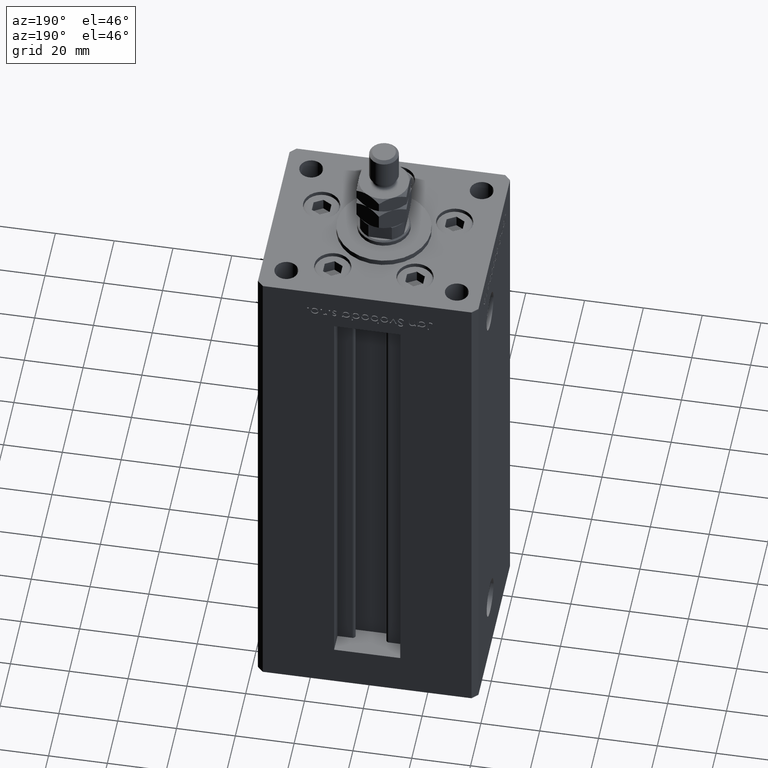
[diagram: clean part render]
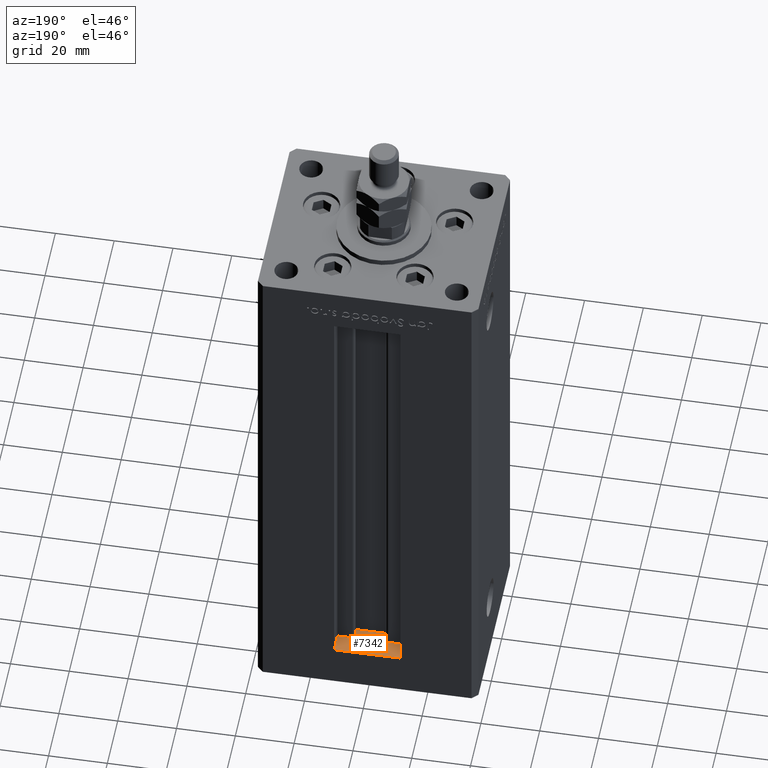
[diagram: same view with one face highlighted and labeled with its STEP entity id]
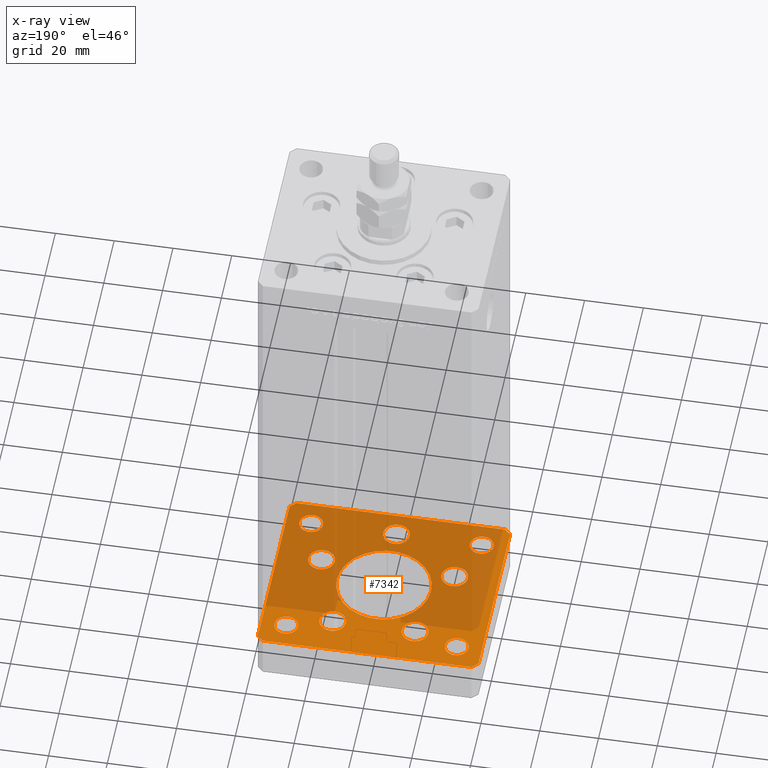
[diagram: x-ray of the same camera — body ghosted, the highlighted face saturated]
A machine part, auxiliary view. The second image highlights one B-rep face of the part: STEP entity #7342.
The next image is the same camera in x-ray: the body ghosted, the highlighted face saturated — about 67% of this face is hidden behind the body in this view.
In plain terms, the highlighted planar face has unit normal (0, 0, -1).
Its self-contained STEP definition (entity closure, byte-faithful):
#32 = CARTESIAN_POINT ( 'NONE',  ( -35.50000000000002842, 32.49999999999999289, -15.00000000000000000 ) ) ;
#221 = EDGE_CURVE ( 'NONE', #25170, #31991, #34277, .T. ) ;
#257 = CIRCLE ( 'NONE', #21076, 3.999999999999996447 ) ;
#447 = CARTESIAN_POINT ( 'NONE',  ( -25.00000000000001421, 24.00000000000000711, -15.00000000000000000 ) ) ;
#571 = CARTESIAN_POINT ( 'NONE',  ( -13.99106857963322703, 19.49999999999999645, -15.00000000000000000 ) ) ;
#1080 = EDGE_CURVE ( 'NONE', #19226, #32129, #18626, .T. ) ;
#1096 = VERTEX_POINT ( 'NONE', #39549 ) ;
#1191 = EDGE_LOOP ( 'NONE', ( #29974, #44761 ) ) ;
#1295 = ORIENTED_EDGE ( 'NONE', *, *, #20388, .F. ) ;
#1344 = CARTESIAN_POINT ( 'NONE',  ( 35.50000000000000711, -32.50000000000000711, -15.00000000000000000 ) ) ;
#1775 = DIRECTION ( 'NONE',  ( -0.000000000000000000, -0.000000000000000000, -1.000000000000000000 ) ) ;
#2046 = CARTESIAN_POINT ( 'NONE',  ( -29.00000000000001066, -23.99999999999999289, -15.00000000000000000 ) ) ;
#2574 = DIRECTION ( 'NONE',  ( 0.000000000000000000, 0.000000000000000000, 1.000000000000000000 ) ) ;
#2785 = AXIS2_PLACEMENT_3D ( 'NONE', #47883, #18805, #38378 ) ;
#2981 = LINE ( 'NONE', #6769, #47270 ) ;
#3393 = DIRECTION ( 'NONE',  ( 1.000000000000000000, 9.773090005503140331E-17, 0.000000000000000000 ) ) ;
#3623 = FACE_BOUND ( 'NONE', #11399, .T. ) ;
#3924 = AXIS2_PLACEMENT_3D ( 'NONE', #571, #13320, #50020 ) ;
#3940 = VERTEX_POINT ( 'NONE', #41711 ) ;
#4023 = DIRECTION ( 'NONE',  ( -0.7071067811865482389, 0.7071067811865469066, 0.000000000000000000 ) ) ;
#4573 = CARTESIAN_POINT ( 'NONE',  ( -29.00000000000001066, -23.99999999999999289, -15.00000000000000000 ) ) ;
#4734 = AXIS2_PLACEMENT_3D ( 'NONE', #40653, #12111, #33035 ) ;
#6063 = CARTESIAN_POINT ( 'NONE',  ( 4.500000000000003553, -24.00000000000000000, -15.00000000000000000 ) ) ;
#6201 = FACE_BOUND ( 'NONE', #39539, .T. ) ;
#6376 = ORIENTED_EDGE ( 'NONE', *, *, #34914, .F. ) ;
#6484 = CARTESIAN_POINT ( 'NONE',  ( 25.00000000000000711, -23.99999999999999289, -15.00000000000000000 ) ) ;
#6559 = DIRECTION ( 'NONE',  ( 1.000000000000000000, 0.000000000000000000, 0.000000000000000000 ) ) ;
#6651 = AXIS2_PLACEMENT_3D ( 'NONE', #12056, #20218, #48224 ) ;
#6769 = CARTESIAN_POINT ( 'NONE',  ( 35.50000000000000711, -32.50000000000000711, -15.00000000000000000 ) ) ;
#7177 = CARTESIAN_POINT ( 'NONE',  ( -29.00000000000001066, 24.00000000000000711, -15.00000000000000000 ) ) ;
#7266 = DIRECTION ( 'NONE',  ( 0.000000000000000000, -0.000000000000000000, -1.000000000000000000 ) ) ;
#7342 = ADVANCED_FACE ( 'NONE', ( #3623, #23999, #28339, #53068, #11762, #51318, #6201, #9737, #18703, #43162, #34458 ), #14080, .F. ) ;
#7539 = ORIENTED_EDGE ( 'NONE', *, *, #29613, .F. ) ;
#7711 = CARTESIAN_POINT ( 'NONE',  ( -33.00000000000000711, 24.00000000000000711, -15.00000000000000000 ) ) ;
#7783 = LINE ( 'NONE', #20011, #52302 ) ;
#8067 = CARTESIAN_POINT ( 'NONE',  ( -22.62741699796951877, -8.000000000000005329, -15.00000000000000000 ) ) ;
#8216 = ORIENTED_EDGE ( 'NONE', *, *, #17083, .T. ) ;
#8464 = EDGE_CURVE ( 'NONE', #31991, #25170, #21696, .T. ) ;
#8720 = AXIS2_PLACEMENT_3D ( 'NONE', #12103, #29490, #16986 ) ;
#9014 = EDGE_CURVE ( 'NONE', #37923, #42748, #18269, .T. ) ;
#9196 = VERTEX_POINT ( 'NONE', #11453 ) ;
#9211 = DIRECTION ( 'NONE',  ( 0.000000000000000000, -0.000000000000000000, -1.000000000000000000 ) ) ;
#9225 = EDGE_CURVE ( 'NONE', #9992, #35448, #36519, .T. ) ;
#9327 = AXIS2_PLACEMENT_3D ( 'NONE', #2046, #1775, #10185 ) ;
#9706 = VERTEX_POINT ( 'NONE', #30848 ) ;
#9737 = FACE_BOUND ( 'NONE', #49173, .T. ) ;
#9891 = CIRCLE ( 'NONE', #40271, 4.499999999999999112 ) ;
#9911 = CIRCLE ( 'NONE', #4734, 4.500000000000001776 ) ;
#9992 = VERTEX_POINT ( 'NONE', #6063 ) ;
#10185 = DIRECTION ( 'NONE',  ( -1.000000000000000000, 0.000000000000000000, 0.000000000000000000 ) ) ;
#10750 = CARTESIAN_POINT ( 'NONE',  ( 27.12741699796952233, -8.000000000000000000, -15.00000000000000000 ) ) ;
#11182 = CARTESIAN_POINT ( 'NONE',  ( -37.49999999999998579, -30.50000000000001421, -15.00000000000000000 ) ) ;
#11198 = AXIS2_PLACEMENT_3D ( 'NONE', #52818, #31074, #15046 ) ;
#11270 = LINE ( 'NONE', #28376, #49335 ) ;
#11399 = EDGE_LOOP ( 'NONE', ( #40294, #46484 ) ) ;
#11453 = CARTESIAN_POINT ( 'NONE',  ( -9.491068579633228808, 19.49999999999999645, -15.00000000000000000 ) ) ;
#11665 = CARTESIAN_POINT ( 'NONE',  ( -37.50000000000001421, 30.49999999999998579, -15.00000000000000000 ) ) ;
#11681 = VECTOR ( 'NONE', #4023, 999.9999999999998863 ) ;
#11762 = FACE_BOUND ( 'NONE', #14127, .T. ) ;
#11926 = ORIENTED_EDGE ( 'NONE', *, *, #25012, .F. ) ;
#12056 = CARTESIAN_POINT ( 'NONE',  ( 29.00000000000001066, -23.99999999999999289, -15.00000000000000000 ) ) ;
#12103 = CARTESIAN_POINT ( 'NONE',  ( -22.62741699796951877, -8.000000000000005329, -15.00000000000000000 ) ) ;
#12111 = DIRECTION ( 'NONE',  ( 0.000000000000000000, -0.000000000000000000, -1.000000000000000000 ) ) ;
#12243 = CARTESIAN_POINT ( 'NONE',  ( 2.939152317953647500E-15, -24.00000000000000000, -15.00000000000000000 ) ) ;
#13320 = DIRECTION ( 'NONE',  ( 0.000000000000000000, -0.000000000000000000, -1.000000000000000000 ) ) ;
#13481 = AXIS2_PLACEMENT_3D ( 'NONE', #49272, #20459, #53612 ) ;
#13817 = EDGE_CURVE ( 'NONE', #25718, #36876, #40080, .T. ) ;
#14080 = PLANE ( 'NONE',  #38076 ) ;
#14127 = EDGE_LOOP ( 'NONE', ( #19706, #46767 ) ) ;
#14176 = VERTEX_POINT ( 'NONE', #52094 ) ;
#14418 = DIRECTION ( 'NONE',  ( 1.000000000000000000, 0.000000000000000000, 0.000000000000000000 ) ) ;
#14712 = DIRECTION ( 'NONE',  ( 0.000000000000000000, -0.000000000000000000, -1.000000000000000000 ) ) ;
#14988 = CARTESIAN_POINT ( 'NONE',  ( -18.49106857963322526, 19.49999999999999645, -15.00000000000000000 ) ) ;
#15046 = DIRECTION ( 'NONE',  ( 1.000000000000000000, 0.000000000000000000, 0.000000000000000000 ) ) ;
#15212 = AXIS2_PLACEMENT_3D ( 'NONE', #8067, #7266, #49644 ) ;
#15654 = DIRECTION ( 'NONE',  ( -1.000000000000000000, -1.954618001100629052E-16, 0.000000000000000000 ) ) ;
#15764 = EDGE_LOOP ( 'NONE', ( #18283, #17616 ) ) ;
#15919 = CARTESIAN_POINT ( 'NONE',  ( 22.62741699796951877, -8.000000000000000000, -15.00000000000000000 ) ) ;
#16032 = CIRCLE ( 'NONE', #3924, 4.499999999999999112 ) ;
#16515 = DIRECTION ( 'NONE',  ( -0.000000000000000000, -0.000000000000000000, -1.000000000000000000 ) ) ;
#16540 = VERTEX_POINT ( 'NONE', #6484 ) ;
#16754 = DIRECTION ( 'NONE',  ( 1.000000000000000000, 0.000000000000000000, 0.000000000000000000 ) ) ;
#16986 = DIRECTION ( 'NONE',  ( 1.000000000000000000, 0.000000000000000000, 0.000000000000000000 ) ) ;
#17083 = EDGE_CURVE ( 'NONE', #37547, #30685, #257, .T. ) ;
#17219 = EDGE_LOOP ( 'NONE', ( #47761, #50642, #51288, #1295, #50829, #38342, #37390, #49462 ) ) ;
#17425 = ORIENTED_EDGE ( 'NONE', *, *, #31012, .F. ) ;
#17616 = ORIENTED_EDGE ( 'NONE', *, *, #29676, .F. ) ;
#17640 = AXIS2_PLACEMENT_3D ( 'NONE', #45329, #27952, #32286 ) ;
#18269 = CIRCLE ( 'NONE', #30408, 16.00000000000000000 ) ;
#18283 = ORIENTED_EDGE ( 'NONE', *, *, #46350, .F. ) ;
#18538 = EDGE_CURVE ( 'NONE', #30685, #37547, #37609, .T. ) ;
#18626 = LINE ( 'NONE', #35198, #29098 ) ;
#18703 = FACE_OUTER_BOUND ( 'NONE', #17219, .T. ) ;
#18805 = DIRECTION ( 'NONE',  ( 0.000000000000000000, 0.000000000000000000, 1.000000000000000000 ) ) ;
#19005 = DIRECTION ( 'NONE',  ( 0.7071067811865487940, 0.7071067811865463515, 0.000000000000000000 ) ) ;
#19060 = CIRCLE ( 'NONE', #49448, 4.500000000000005329 ) ;
#19136 = DIRECTION ( 'NONE',  ( 1.000000000000000000, 0.000000000000000000, 0.000000000000000000 ) ) ;
#19226 = VERTEX_POINT ( 'NONE', #32 ) ;
#19706 = ORIENTED_EDGE ( 'NONE', *, *, #52973, .F. ) ;
#19790 = LINE ( 'NONE', #36355, #11681 ) ;
#20011 = CARTESIAN_POINT ( 'NONE',  ( 37.50000000000001421, -30.50000000000000711, -15.00000000000000000 ) ) ;
#20218 = DIRECTION ( 'NONE',  ( -0.000000000000000000, -0.000000000000000000, -1.000000000000000000 ) ) ;
#20244 = CARTESIAN_POINT ( 'NONE',  ( -37.50000000000001421, 30.49999999999998579, -15.00000000000000000 ) ) ;
#20371 = VECTOR ( 'NONE', #44326, 1000.000000000000114 ) ;
#20388 = EDGE_CURVE ( 'NONE', #9706, #19226, #30608, .T. ) ;
#20459 = DIRECTION ( 'NONE',  ( 0.000000000000000000, -0.000000000000000000, -1.000000000000000000 ) ) ;
#20542 = DIRECTION ( 'NONE',  ( 0.000000000000000000, -0.000000000000000000, -1.000000000000000000 ) ) ;
#20647 = EDGE_CURVE ( 'NONE', #30844, #48296, #7783, .T. ) ;
#20901 = ORIENTED_EDGE ( 'NONE', *, *, #41260, .F. ) ;
#21076 = AXIS2_PLACEMENT_3D ( 'NONE', #7177, #2574, #19136 ) ;
#21280 = VERTEX_POINT ( 'NONE', #29831 ) ;
#21360 = CIRCLE ( 'NONE', #50832, 3.999999999999996447 ) ;
#21379 = DIRECTION ( 'NONE',  ( 1.000000000000000000, 0.000000000000000000, 0.000000000000000000 ) ) ;
#21696 = CIRCLE ( 'NONE', #8720, 4.499999999999997335 ) ;
#22818 = ORIENTED_EDGE ( 'NONE', *, *, #13817, .T. ) ;
#23999 = FACE_BOUND ( 'NONE', #1191, .T. ) ;
#24898 = EDGE_CURVE ( 'NONE', #36876, #25718, #49820, .T. ) ;
#25012 = EDGE_CURVE ( 'NONE', #40615, #9196, #9891, .T. ) ;
#25170 = VERTEX_POINT ( 'NONE', #46120 ) ;
#25309 = VERTEX_POINT ( 'NONE', #10750 ) ;
#25461 = DIRECTION ( 'NONE',  ( 0.000000000000000000, -0.000000000000000000, -1.000000000000000000 ) ) ;
#25552 = CARTESIAN_POINT ( 'NONE',  ( -16.00000000000000000, 1.959434878635764737E-15, -15.00000000000000000 ) ) ;
#25628 = DIRECTION ( 'NONE',  ( -0.000000000000000000, -0.000000000000000000, -1.000000000000000000 ) ) ;
#25718 = VERTEX_POINT ( 'NONE', #51316 ) ;
#25724 = CARTESIAN_POINT ( 'NONE',  ( -13.99106857963322703, 19.49999999999999645, -15.00000000000000000 ) ) ;
#25906 = EDGE_CURVE ( 'NONE', #48296, #9706, #19790, .T. ) ;
#26314 = AXIS2_PLACEMENT_3D ( 'NONE', #29699, #25628, #47876 ) ;
#26315 = DIRECTION ( 'NONE',  ( 1.000000000000000000, 0.000000000000000000, 0.000000000000000000 ) ) ;
#26371 = AXIS2_PLACEMENT_3D ( 'NONE', #28993, #52185, #16754 ) ;
#26805 = CIRCLE ( 'NONE', #11198, 4.500000000000005329 ) ;
#26807 = CARTESIAN_POINT ( 'NONE',  ( 35.49999999999992184, 32.50000000000000711, -15.00000000000000000 ) ) ;
#27100 = ORIENTED_EDGE ( 'NONE', *, *, #18538, .T. ) ;
#27577 = EDGE_LOOP ( 'NONE', ( #33916, #7539 ) ) ;
#27687 = EDGE_CURVE ( 'NONE', #14176, #47973, #48406, .T. ) ;
#27952 = DIRECTION ( 'NONE',  ( 0.000000000000000000, 0.000000000000000000, 1.000000000000000000 ) ) ;
#28339 = FACE_BOUND ( 'NONE', #27577, .T. ) ;
#28376 = CARTESIAN_POINT ( 'NONE',  ( -35.49999999999998579, -32.50000000000001421, -15.00000000000000000 ) ) ;
#28689 = AXIS2_PLACEMENT_3D ( 'NONE', #12243, #49485, #41313 ) ;
#28993 = CARTESIAN_POINT ( 'NONE',  ( 29.00000000000001066, 24.00000000000000711, -15.00000000000000000 ) ) ;
#29053 = CARTESIAN_POINT ( 'NONE',  ( 22.62741699796951877, -8.000000000000000000, -15.00000000000000000 ) ) ;
#29098 = VECTOR ( 'NONE', #51781, 1000.000000000000000 ) ;
#29136 = CARTESIAN_POINT ( 'NONE',  ( 0.000000000000000000, 0.000000000000000000, -15.00000000000000000 ) ) ;
#29490 = DIRECTION ( 'NONE',  ( 0.000000000000000000, -0.000000000000000000, -1.000000000000000000 ) ) ;
#29587 = ORIENTED_EDGE ( 'NONE', *, *, #38371, .F. ) ;
#29613 = EDGE_CURVE ( 'NONE', #35448, #9992, #9911, .T. ) ;
#29676 = EDGE_CURVE ( 'NONE', #40322, #25309, #31592, .T. ) ;
#29699 = CARTESIAN_POINT ( 'NONE',  ( 29.00000000000001066, -23.99999999999999289, -15.00000000000000000 ) ) ;
#29831 = CARTESIAN_POINT ( 'NONE',  ( -25.00000000000001066, -23.99999999999999289, -15.00000000000000000 ) ) ;
#29853 = DIRECTION ( 'NONE',  ( 1.000000000000000000, 0.000000000000000000, 0.000000000000000000 ) ) ;
#29974 = ORIENTED_EDGE ( 'NONE', *, *, #221, .F. ) ;
#30078 = EDGE_CURVE ( 'NONE', #51383, #30844, #2981, .T. ) ;
#30261 = AXIS2_PLACEMENT_3D ( 'NONE', #29053, #9211, #29853 ) ;
#30408 = AXIS2_PLACEMENT_3D ( 'NONE', #30739, #14712, #6559 ) ;
#30421 = CARTESIAN_POINT ( 'NONE',  ( 37.49999999999992184, 30.50000000000001066, -15.00000000000000000 ) ) ;
#30608 = LINE ( 'NONE', #26807, #32355 ) ;
#30685 = VERTEX_POINT ( 'NONE', #447 ) ;
#30739 = CARTESIAN_POINT ( 'NONE',  ( 0.000000000000000000, 0.000000000000000000, -15.00000000000000000 ) ) ;
#30844 = VERTEX_POINT ( 'NONE', #46345 ) ;
#30845 = CIRCLE ( 'NONE', #13481, 16.00000000000000000 ) ;
#30848 = CARTESIAN_POINT ( 'NONE',  ( 35.49999999999992184, 32.50000000000000711, -15.00000000000000000 ) ) ;
#31012 = EDGE_CURVE ( 'NONE', #16540, #3940, #49767, .T. ) ;
#31074 = DIRECTION ( 'NONE',  ( 0.000000000000000000, -0.000000000000000000, -1.000000000000000000 ) ) ;
#31592 = CIRCLE ( 'NONE', #35083, 4.500000000000000888 ) ;
#31991 = VERTEX_POINT ( 'NONE', #46231 ) ;
#32129 = VERTEX_POINT ( 'NONE', #11665 ) ;
#32286 = DIRECTION ( 'NONE',  ( 1.000000000000000000, 0.000000000000000000, 0.000000000000000000 ) ) ;
#32355 = VECTOR ( 'NONE', #15654, 1000.000000000000000 ) ;
#32499 = DIRECTION ( 'NONE',  ( 1.000000000000000000, 0.000000000000000000, 0.000000000000000000 ) ) ;
#32764 = CIRCLE ( 'NONE', #9327, 3.999999999999996447 ) ;
#33035 = DIRECTION ( 'NONE',  ( 1.000000000000000000, 0.000000000000000000, 0.000000000000000000 ) ) ;
#33233 = CARTESIAN_POINT ( 'NONE',  ( 18.12741699796951877, -8.000000000000000000, -15.00000000000000000 ) ) ;
#33916 = ORIENTED_EDGE ( 'NONE', *, *, #9225, .F. ) ;
#34037 = CARTESIAN_POINT ( 'NONE',  ( -4.499999999999999112, -24.00000000000000000, -15.00000000000000000 ) ) ;
#34277 = CIRCLE ( 'NONE', #15212, 4.499999999999997335 ) ;
#34458 = FACE_BOUND ( 'NONE', #40884, .T. ) ;
#34914 = EDGE_CURVE ( 'NONE', #9196, #40615, #16032, .T. ) ;
#35083 = AXIS2_PLACEMENT_3D ( 'NONE', #15919, #20542, #32499 ) ;
#35198 = CARTESIAN_POINT ( 'NONE',  ( -35.50000000000002842, 32.49999999999999289, -15.00000000000000000 ) ) ;
#35312 = CIRCLE ( 'NONE', #6651, 4.000000000000003553 ) ;
#35448 = VERTEX_POINT ( 'NONE', #34037 ) ;
#36355 = CARTESIAN_POINT ( 'NONE',  ( 37.49999999999992184, 30.50000000000001066, -15.00000000000000000 ) ) ;
#36519 = CIRCLE ( 'NONE', #28689, 4.500000000000001776 ) ;
#36543 = DIRECTION ( 'NONE',  ( 4.550094363217855288E-16, -1.000000000000000000, 0.000000000000000000 ) ) ;
#36579 = DIRECTION ( 'NONE',  ( -1.478780668045802821E-15, 1.000000000000000000, 0.000000000000000000 ) ) ;
#36655 = VERTEX_POINT ( 'NONE', #42243 ) ;
#36876 = VERTEX_POINT ( 'NONE', #48731 ) ;
#36889 = EDGE_CURVE ( 'NONE', #42748, #37923, #30845, .T. ) ;
#37390 = ORIENTED_EDGE ( 'NONE', *, *, #30078, .F. ) ;
#37547 = VERTEX_POINT ( 'NONE', #7711 ) ;
#37609 = CIRCLE ( 'NONE', #17640, 3.999999999999996447 ) ;
#37923 = VERTEX_POINT ( 'NONE', #25552 ) ;
#38076 = AXIS2_PLACEMENT_3D ( 'NONE', #29136, #38805, #26315 ) ;
#38183 = ORIENTED_EDGE ( 'NONE', *, *, #47801, .F. ) ;
#38342 = ORIENTED_EDGE ( 'NONE', *, *, #20647, .F. ) ;
#38371 = EDGE_CURVE ( 'NONE', #36655, #21280, #21360, .T. ) ;
#38378 = DIRECTION ( 'NONE',  ( 1.000000000000000000, 0.000000000000000000, 0.000000000000000000 ) ) ;
#38805 = DIRECTION ( 'NONE',  ( -0.000000000000000000, 0.000000000000000000, 1.000000000000000000 ) ) ;
#39372 = CARTESIAN_POINT ( 'NONE',  ( 16.00000000000000000, 0.000000000000000000, -15.00000000000000000 ) ) ;
#39539 = EDGE_LOOP ( 'NONE', ( #22818, #45180 ) ) ;
#39549 = CARTESIAN_POINT ( 'NONE',  ( 9.491068579633218150, 19.50000000000000000, -15.00000000000000000 ) ) ;
#40080 = CIRCLE ( 'NONE', #2785, 4.000000000000003553 ) ;
#40271 = AXIS2_PLACEMENT_3D ( 'NONE', #25724, #25461, #21379 ) ;
#40294 = ORIENTED_EDGE ( 'NONE', *, *, #36889, .F. ) ;
#40322 = VERTEX_POINT ( 'NONE', #33233 ) ;
#40484 = EDGE_LOOP ( 'NONE', ( #6376, #11926 ) ) ;
#40615 = VERTEX_POINT ( 'NONE', #14988 ) ;
#40653 = CARTESIAN_POINT ( 'NONE',  ( 2.939152317953647500E-15, -24.00000000000000000, -15.00000000000000000 ) ) ;
#40884 = EDGE_LOOP ( 'NONE', ( #38183, #29587 ) ) ;
#41260 = EDGE_CURVE ( 'NONE', #3940, #16540, #35312, .T. ) ;
#41313 = DIRECTION ( 'NONE',  ( 1.000000000000000000, 0.000000000000000000, 0.000000000000000000 ) ) ;
#41711 = CARTESIAN_POINT ( 'NONE',  ( 33.00000000000001421, -23.99999999999999289, -15.00000000000000000 ) ) ;
#42243 = CARTESIAN_POINT ( 'NONE',  ( -33.00000000000000711, -23.99999999999999289, -15.00000000000000000 ) ) ;
#42408 = VECTOR ( 'NONE', #36543, 1000.000000000000000 ) ;
#42748 = VERTEX_POINT ( 'NONE', #39372 ) ;
#42952 = DIRECTION ( 'NONE',  ( 0.000000000000000000, -0.000000000000000000, -1.000000000000000000 ) ) ;
#43162 = FACE_BOUND ( 'NONE', #48095, .T. ) ;
#43265 = CIRCLE ( 'NONE', #30261, 4.500000000000000888 ) ;
#44326 = DIRECTION ( 'NONE',  ( 0.7071067811865474617, -0.7071067811865474617, 0.000000000000000000 ) ) ;
#44717 = EDGE_CURVE ( 'NONE', #47973, #51383, #11270, .T. ) ;
#44761 = ORIENTED_EDGE ( 'NONE', *, *, #8464, .F. ) ;
#45180 = ORIENTED_EDGE ( 'NONE', *, *, #24898, .T. ) ;
#45329 = CARTESIAN_POINT ( 'NONE',  ( -29.00000000000001066, 24.00000000000000711, -15.00000000000000000 ) ) ;
#46120 = CARTESIAN_POINT ( 'NONE',  ( -18.12741699796952233, -8.000000000000005329, -15.00000000000000000 ) ) ;
#46231 = CARTESIAN_POINT ( 'NONE',  ( -27.12741699796951877, -8.000000000000005329, -15.00000000000000000 ) ) ;
#46293 = CARTESIAN_POINT ( 'NONE',  ( -35.49999999999998579, -32.50000000000001421, -15.00000000000000000 ) ) ;
#46345 = CARTESIAN_POINT ( 'NONE',  ( 37.50000000000001421, -30.50000000000000711, -15.00000000000000000 ) ) ;
#46350 = EDGE_CURVE ( 'NONE', #25309, #40322, #43265, .T. ) ;
#46462 = EDGE_CURVE ( 'NONE', #32129, #14176, #49321, .T. ) ;
#46484 = ORIENTED_EDGE ( 'NONE', *, *, #9014, .F. ) ;
#46767 = ORIENTED_EDGE ( 'NONE', *, *, #50830, .F. ) ;
#47270 = VECTOR ( 'NONE', #19005, 1000.000000000000000 ) ;
#47761 = ORIENTED_EDGE ( 'NONE', *, *, #27687, .F. ) ;
#47801 = EDGE_CURVE ( 'NONE', #21280, #36655, #32764, .T. ) ;
#47845 = CARTESIAN_POINT ( 'NONE',  ( 13.99106857963322348, 19.50000000000000000, -15.00000000000000000 ) ) ;
#47876 = DIRECTION ( 'NONE',  ( -1.000000000000000000, 0.000000000000000000, 0.000000000000000000 ) ) ;
#47883 = CARTESIAN_POINT ( 'NONE',  ( 29.00000000000001066, 24.00000000000000711, -15.00000000000000000 ) ) ;
#47973 = VERTEX_POINT ( 'NONE', #46293 ) ;
#48095 = EDGE_LOOP ( 'NONE', ( #20901, #17425 ) ) ;
#48224 = DIRECTION ( 'NONE',  ( -1.000000000000000000, 0.000000000000000000, 0.000000000000000000 ) ) ;
#48296 = VERTEX_POINT ( 'NONE', #30421 ) ;
#48406 = LINE ( 'NONE', #11182, #20371 ) ;
#48731 = CARTESIAN_POINT ( 'NONE',  ( 25.00000000000000711, 24.00000000000000711, -15.00000000000000000 ) ) ;
#49173 = EDGE_LOOP ( 'NONE', ( #27100, #8216 ) ) ;
#49272 = CARTESIAN_POINT ( 'NONE',  ( 0.000000000000000000, 0.000000000000000000, -15.00000000000000000 ) ) ;
#49321 = LINE ( 'NONE', #20244, #42408 ) ;
#49335 = VECTOR ( 'NONE', #3393, 1000.000000000000000 ) ;
#49448 = AXIS2_PLACEMENT_3D ( 'NONE', #47845, #42952, #14418 ) ;
#49462 = ORIENTED_EDGE ( 'NONE', *, *, #44717, .F. ) ;
#49485 = DIRECTION ( 'NONE',  ( 0.000000000000000000, -0.000000000000000000, -1.000000000000000000 ) ) ;
#49644 = DIRECTION ( 'NONE',  ( 1.000000000000000000, 0.000000000000000000, 0.000000000000000000 ) ) ;
#49767 = CIRCLE ( 'NONE', #26314, 4.000000000000003553 ) ;
#49820 = CIRCLE ( 'NONE', #26371, 4.000000000000003553 ) ;
#50020 = DIRECTION ( 'NONE',  ( 1.000000000000000000, 0.000000000000000000, 0.000000000000000000 ) ) ;
#50491 = DIRECTION ( 'NONE',  ( -1.000000000000000000, 0.000000000000000000, 0.000000000000000000 ) ) ;
#50642 = ORIENTED_EDGE ( 'NONE', *, *, #46462, .F. ) ;
#50829 = ORIENTED_EDGE ( 'NONE', *, *, #25906, .F. ) ;
#50830 = EDGE_CURVE ( 'NONE', #1096, #53526, #26805, .T. ) ;
#50832 = AXIS2_PLACEMENT_3D ( 'NONE', #4573, #16515, #50491 ) ;
#51288 = ORIENTED_EDGE ( 'NONE', *, *, #1080, .F. ) ;
#51316 = CARTESIAN_POINT ( 'NONE',  ( 33.00000000000001421, 24.00000000000000711, -15.00000000000000000 ) ) ;
#51318 = FACE_BOUND ( 'NONE', #40484, .T. ) ;
#51383 = VERTEX_POINT ( 'NONE', #1344 ) ;
#51781 = DIRECTION ( 'NONE',  ( -0.7071067811865426878, -0.7071067811865524577, 0.000000000000000000 ) ) ;
#52094 = CARTESIAN_POINT ( 'NONE',  ( -37.49999999999998579, -30.50000000000001421, -15.00000000000000000 ) ) ;
#52185 = DIRECTION ( 'NONE',  ( 0.000000000000000000, 0.000000000000000000, 1.000000000000000000 ) ) ;
#52302 = VECTOR ( 'NONE', #36579, 1000.000000000000000 ) ;
#52818 = CARTESIAN_POINT ( 'NONE',  ( 13.99106857963322348, 19.50000000000000000, -15.00000000000000000 ) ) ;
#52875 = CARTESIAN_POINT ( 'NONE',  ( 18.49106857963322881, 19.50000000000000000, -15.00000000000000000 ) ) ;
#52973 = EDGE_CURVE ( 'NONE', #53526, #1096, #19060, .T. ) ;
#53068 = FACE_BOUND ( 'NONE', #15764, .T. ) ;
#53526 = VERTEX_POINT ( 'NONE', #52875 ) ;
#53612 = DIRECTION ( 'NONE',  ( 1.000000000000000000, 0.000000000000000000, 0.000000000000000000 ) ) ;